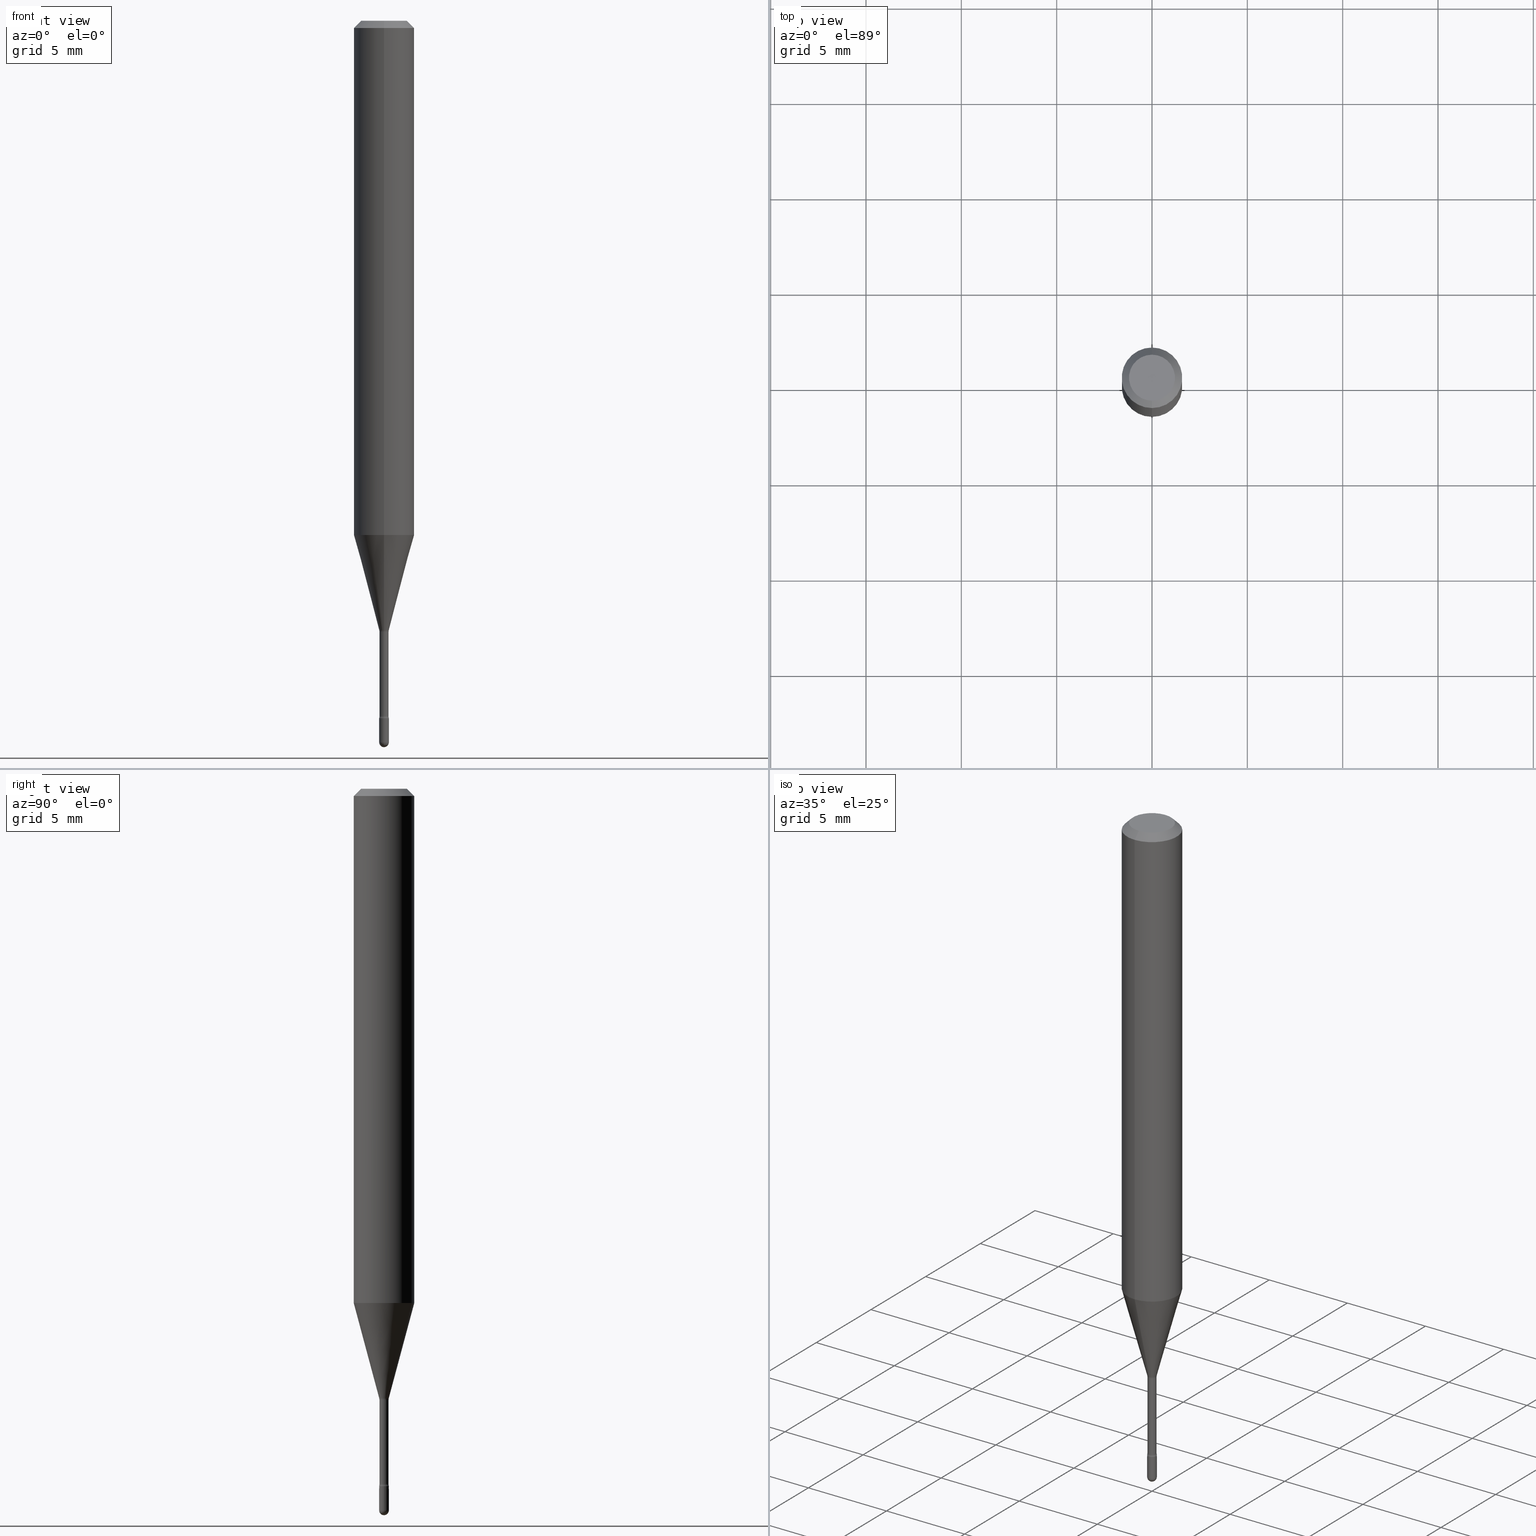
[diagram: canonical four-view strip — front | top / right | iso, engineering-drawing reading convention]
A machine part, canonical four-view strip (front | top / right | iso — engineering-drawing reading convention). The complete STEP part file that produces these views, byte-faithful:
ISO-10303-21;
HEADER;
FILE_DESCRIPTION (( 'STEP AP203' ),
    '1' );
FILE_NAME ('01613.STEP',
    '2024-04-09T20:09:29',
    ( '' ),
    ( '' ),
    'SwSTEP 2.0',
    'SolidWorks 2023',
    '' );
FILE_SCHEMA (( 'CONFIG_CONTROL_DESIGN' ));
ENDSEC;

DATA;
#1 = EDGE_LOOP ( 'NONE', ( #478, #188, #171, #332 ) ) ;
#2 = DIRECTION ( 'NONE',  ( -2.445584668416512625E-29, 3.491315417533346075E-15, 1.000000000000000000 ) ) ;
#3 = DIRECTION ( 'NONE',  ( 1.000000000000000000, -6.982962677686265922E-15, 4.876176775795935793E-29 ) ) ;
#4 = DIRECTION ( 'NONE',  ( 6.982962677686265922E-15, 1.000000000000000000, 0.000000000000000000 ) ) ;
#5 = ADVANCED_FACE ( 'NONE', ( #215 ), #205, .T. ) ;
#6 = AXIS2_PLACEMENT_3D ( 'NONE', #242, #551, #413 ) ;
#7 = CIRCLE ( 'NONE', #529, 0.01000000000000000021 ) ;
#8 = DIRECTION ( 'NONE',  ( 6.982962677686265922E-15, 1.000000000000000000, -3.483106191921935554E-15 ) ) ;
#9 = SECURITY_CLASSIFICATION ( '', '', #507 ) ;
#10 = DIRECTION ( 'NONE',  ( -1.000000000000000000, 6.982962677686265133E-15, -4.883557194083112340E-29 ) ) ;
#11 = CARTESIAN_POINT ( 'NONE',  ( 3.668377002624788976E-31, -5.236973126300048325E-17, -0.01500000000000008271 ) ) ;
#12 = DIRECTION ( 'NONE',  ( -2.445584668416512625E-29, 3.491315417533346075E-15, 1.000000000000000000 ) ) ;
#13 = ADVANCED_FACE ( 'NONE', ( #301 ), #160, .T. ) ;
#14 = CARTESIAN_POINT ( 'NONE',  ( -1.169113584055446105E-44, 1.669184350826100908E-30, 4.780733988912460139E-16 ) ) ;
#15 = DIRECTION ( 'NONE',  ( -6.982962677686265922E-15, -1.000000000000000000, 3.491315417533347653E-15 ) ) ;
#16 = CC_DESIGN_DATE_AND_TIME_ASSIGNMENT ( #203, #22, ( #533 ) ) ;
#17 = CARTESIAN_POINT ( 'NONE',  ( -1.169113584055446105E-44, 1.669184350826100908E-30, 4.780733988912460139E-16 ) ) ;
#18 = CIRCLE ( 'NONE', #554, 0.01500000000000002720 ) ;
#19 = AXIS2_PLACEMENT_3D ( 'NONE', #308, #525, #44 ) ;
#20 = CARTESIAN_POINT ( 'NONE',  ( 1.733724275254997086E-16, 0.02439999999999501248, -1.435799999999999965 ) ) ;
#21 = EDGE_CURVE ( 'NONE', #548, #84, #392, .T. ) ;
#22 = DATE_TIME_ROLE ( 'creation_date' ) ;
#23 = ORIENTED_EDGE ( 'NONE', *, *, #497, .T. ) ;
#24 = AXIS2_PLACEMENT_3D ( 'NONE', #76, #189, #416 ) ;
#25 = APPROVAL_ROLE ( '' ) ;
#26 = CIRCLE ( 'NONE', #360, 0.009399999999999986491 ) ;
#27 = PERSON_AND_ORGANIZATION_ROLE ( 'design_owner' ) ;
#28 = DIRECTION ( 'NONE',  ( -2.445584668416512625E-29, 3.491315417533346075E-15, 1.000000000000000000 ) ) ;
#29 = CARTESIAN_POINT ( 'NONE',  ( 4.440892098500884514E-16, 0.06249999999999629463, -1.061828102118093309 ) ) ;
#30 = ADVANCED_FACE ( 'NONE', ( #487 ), #492, .F. ) ;
#31 = CARTESIAN_POINT ( 'NONE',  ( 3.076771733820729551E-29, -4.392397748173006577E-15, -1.258092501787273276 ) ) ;
#32 = CALENDAR_DATE ( 2024, 9, 4 ) ;
#33 = DIRECTION ( 'NONE',  ( -2.445584668416512625E-29, 3.491315417533346075E-15, 1.000000000000000000 ) ) ;
#34 = EDGE_LOOP ( 'NONE', ( #81, #427, #527, #563 ) ) ;
#35 = APPROVAL_DATE_TIME ( #420, #200 ) ;
#36 = AXIS2_PLACEMENT_3D ( 'NONE', #307, #97, #272 ) ;
#37 = VERTEX_POINT ( 'NONE', #523 ) ;
#38 = AXIS2_PLACEMENT_3D ( 'NONE', #385, #267, #222 ) ;
#39 = CC_DESIGN_APPROVAL ( #480, ( #533 ) ) ;
#40 = CARTESIAN_POINT ( 'NONE',  ( 3.521641922519778920E-29, -5.027494201248018979E-15, -1.440000000000000169 ) ) ;
#41 = ORIENTED_EDGE ( 'NONE', *, *, #98, .F. ) ;
#42 = PRODUCT ( '01613', '01613', '', ( #78 ) ) ;
#43 = ORIENTED_EDGE ( 'NONE', *, *, #82, .F. ) ;
#44 = DIRECTION ( 'NONE',  ( 1.000000000000000000, -6.982962677686265922E-15, 4.876176775795935793E-29 ) ) ;
#45 = VERTEX_POINT ( 'NONE', #474 ) ;
#46 = CIRCLE ( 'NONE', #256, 0.009911112605663983943 ) ;
#47 = ORIENTED_EDGE ( 'NONE', *, *, #111, .T. ) ;
#48 = CIRCLE ( 'NONE', #161, 0.01500000000000002720 ) ;
#49 = CARTESIAN_POINT ( 'NONE',  ( -6.920892941966669973E-17, -0.009911112605668376263, -1.258092501787273276 ) ) ;
#50 = CARTESIAN_POINT ( 'NONE',  ( -6.982962677682758991E-17, -0.01000000000000504825, -1.440000000000000169 ) ) ;
#51 = EDGE_LOOP ( 'NONE', ( #430, #129, #559, #89 ) ) ;
#52 = ORIENTED_EDGE ( 'NONE', *, *, #132, .T. ) ;
#53 = APPLICATION_CONTEXT ( 'configuration controlled 3d designs of mechanical parts and assemblies' ) ;
#54 = EDGE_CURVE ( 'NONE', #349, #45, #87, .T. ) ;
#55 = CARTESIAN_POINT ( 'NONE',  ( -4.287811248607203282E-16, -0.06250000000000005551, -0.01499999999999986587 ) ) ;
#56 = DIRECTION ( 'NONE',  ( -2.445584668416512625E-29, 3.491315417533346075E-15, 1.000000000000000000 ) ) ;
#57 = VERTEX_POINT ( 'NONE', #565 ) ;
#58 = CARTESIAN_POINT ( 'NONE',  ( 3.316907271900976096E-16, 0.04749999999999999362, 3.182176044590865789E-17 ) ) ;
#59 = DIMENSIONAL_EXPONENTS ( 1.000000000000000000, 0.000000000000000000, 0.000000000000000000, 0.000000000000000000, 0.000000000000000000, 0.000000000000000000, 0.000000000000000000 ) ;
#60 = CIRCLE ( 'NONE', #309, 0.01000000000000000021 ) ;
#61 = CARTESIAN_POINT ( 'NONE',  ( -6.563984917021568552E-17, -0.009400000000004998107, -1.435799999999999965 ) ) ;
#62 = EDGE_CURVE ( 'NONE', #228, #468, #328, .T. ) ;
#63 = DIRECTION ( 'NONE',  ( -2.445584668416512625E-29, 3.491315417533346075E-15, 1.000000000000000000 ) ) ;
#64 = ORIENTED_EDGE ( 'NONE', *, *, #543, .F. ) ;
#65 = CARTESIAN_POINT ( 'NONE',  ( -6.563984917025085146E-17, -0.009399999999999993430, 5.108917638160594911E-16 ) ) ;
#66 = DIRECTION ( 'NONE',  ( -6.982962677686265922E-15, -1.000000000000000000, 0.000000000000000000 ) ) ;
#67 = DIRECTION ( 'NONE',  ( -6.982962677686264344E-15, -1.000000000000000000, 0.000000000000000000 ) ) ;
#68 = DIRECTION ( 'NONE',  ( -2.445584668416512625E-29, 3.491315417533346075E-15, 1.000000000000000000 ) ) ;
#69 = VECTOR ( 'NONE', #539, 39.37007874015748143 ) ;
#70 = LINE ( 'NONE', #541, #69 ) ;
#71 = CC_DESIGN_DATE_AND_TIME_ASSIGNMENT ( #337, #119, ( #9 ) ) ;
#72 = PERSON_AND_ORGANIZATION ( #312, #501 ) ;
#73 = DIRECTION ( 'NONE',  ( -6.982962677686265922E-15, -1.000000000000000000, 3.491315417533345680E-15 ) ) ;
#74 = VECTOR ( 'NONE', #262, 39.37007874015748143 ) ;
#75 = EDGE_CURVE ( 'NONE', #378, #314, #235, .T. ) ;
#76 = CARTESIAN_POINT ( 'NONE',  ( 3.076771733820729551E-29, -4.392397748173006577E-15, -1.258092501787273276 ) ) ;
#77 = COORDINATED_UNIVERSAL_TIME_OFFSET ( 5, 0, .BEHIND. ) ;
#78 = MECHANICAL_CONTEXT ( 'NONE', #107, 'mechanical' ) ;
#79 = ORIENTED_EDGE ( 'NONE', *, *, #543, .T. ) ;
#80 = COORDINATED_UNIVERSAL_TIME_OFFSET ( 5, 0, .BEHIND. ) ;
#81 = ORIENTED_EDGE ( 'NONE', *, *, #232, .T. ) ;
#82 = EDGE_CURVE ( 'NONE', #548, #37, #18, .T. ) ;
#83 = FACE_OUTER_BOUND ( 'NONE', #271, .T. ) ;
#84 = VERTEX_POINT ( 'NONE', #202 ) ;
#85 = AXIS2_PLACEMENT_3D ( 'NONE', #266, #63, #231 ) ;
#86 = VERTEX_POINT ( 'NONE', #508 ) ;
#87 = LINE ( 'NONE', #217, #481 ) ;
#88 = EDGE_LOOP ( 'NONE', ( #489, #175, #294, #274, #165 ) ) ;
#89 = ORIENTED_EDGE ( 'NONE', *, *, #62, .F. ) ;
#90 = DIRECTION ( 'NONE',  ( 1.000000000000000000, -6.982962677686235945E-15, 0.000000000000000000 ) ) ;
#91 = VECTOR ( 'NONE', #159, 39.37007874015748143 ) ;
#92 = ADVANCED_FACE ( 'NONE', ( #504 ), #401, .T. ) ;
#93 = APPROVAL_PERSON_ORGANIZATION ( #509, #200, #512 ) ;
#94 = DIRECTION ( 'NONE',  ( -6.982962677686265922E-15, -1.000000000000000000, 3.491315417533345680E-15 ) ) ;
#95 = CARTESIAN_POINT ( 'NONE',  ( 6.982962677689890787E-17, 0.009999999999994771752, -1.490000000000000213 ) ) ;
#96 = EDGE_LOOP ( 'NONE', ( #23, #317 ) ) ;
#97 = DIRECTION ( 'NONE',  ( -2.445584668416512625E-29, 3.491315417533346075E-15, 1.000000000000000000 ) ) ;
#98 = EDGE_CURVE ( 'NONE', #139, #548, #544, .T. ) ;
#99 = DIRECTION ( 'NONE',  ( -6.982962677686265922E-15, -1.000000000000000000, 0.000000000000000000 ) ) ;
#100 = CLOSED_SHELL ( 'NONE', ( #5, #484, #279, #344, #207 ) ) ;
#101 = CIRCLE ( 'NONE', #493, 0.01500000000000003240 ) ;
#102 = CARTESIAN_POINT ( 'NONE',  ( 1.733724275254952959E-16, 0.02439999999999559535, -1.261974787463811198 ) ) ;
#103 = FACE_OUTER_BOUND ( 'NONE', #515, .T. ) ;
#104 = FACE_OUTER_BOUND ( 'NONE', #174, .T. ) ;
#105 = CARTESIAN_POINT ( 'NONE',  ( 3.668630792422295430E-29, -5.236609684865145574E-15, -1.500000000000000222 ) ) ;
#106 = CARTESIAN_POINT ( 'NONE',  ( 6.892264536876497230E-17, 0.009399999999994974875, -1.435799999999999965 ) ) ;
#107 = APPLICATION_CONTEXT ( 'configuration controlled 3d designs of mechanical parts and assemblies' ) ;
#108 = EDGE_CURVE ( 'NONE', #418, #310, #243, .T. ) ;
#109 = CIRCLE ( 'NONE', #198, 0.01000000000000000021 ) ;
#110 = CARTESIAN_POINT ( 'NONE',  ( 0.000000000000000000, 0.000000000000000000, 0.000000000000000000 ) ) ;
#111 = EDGE_CURVE ( 'NONE', #421, #57, #373, .T. ) ;
#112 = COORDINATED_UNIVERSAL_TIME_OFFSET ( 5, 0, .BEHIND. ) ;
#113 = EDGE_LOOP ( 'NONE', ( #213, #348, #130, #386 ) ) ;
#114 = DIRECTION ( 'NONE',  ( -2.445584668416512625E-29, 3.491315417533346075E-15, 1.000000000000000000 ) ) ;
#115 = AXIS2_PLACEMENT_3D ( 'NONE', #404, #234, #361 ) ;
#116 = CARTESIAN_POINT ( 'NONE',  ( 3.086266192149684335E-29, -4.405952032010772688E-15, -1.261974787463811198 ) ) ;
#117 = ORIENTED_EDGE ( 'NONE', *, *, #396, .T. ) ;
#118 = DIRECTION ( 'NONE',  ( -2.445584668416512625E-29, 3.491315417533346075E-15, 1.000000000000000000 ) ) ;
#119 = DATE_TIME_ROLE ( 'classification_date' ) ;
#120 = CARTESIAN_POINT ( 'NONE',  ( -6.920892941966669973E-17, -0.009911112605668376263, -1.258092501787273276 ) ) ;
#121 = ORIENTED_EDGE ( 'NONE', *, *, #438, .F. ) ;
#122 = ADVANCED_FACE ( 'NONE', ( #104 ), #134, .T. ) ;
#123 = LINE ( 'NONE', #375, #452 ) ;
#124 = ORIENTED_EDGE ( 'NONE', *, *, #552, .F. ) ;
#125 = CARTESIAN_POINT ( 'NONE',  ( 2.024395379359398179E-45, -2.888441822342708038E-31, -8.275491333376081363E-17 ) ) ;
#126 = ORIENTED_EDGE ( 'NONE', *, *, #108, .F. ) ;
#127 = VECTOR ( 'NONE', #273, 39.37007874015748143 ) ;
#128 = MANIFOLD_SOLID_BREP ( 'Body-Move/Copy2[1]', #100 ) ;
#129 = ORIENTED_EDGE ( 'NONE', *, *, #75, .T. ) ;
#130 = ORIENTED_EDGE ( 'NONE', *, *, #252, .T. ) ;
#131 = CARTESIAN_POINT ( 'NONE',  ( 3.643748521215853910E-29, -5.202307194876288105E-15, -1.490000000000000213 ) ) ;
#132 = EDGE_CURVE ( 'NONE', #84, #310, #140, .T. ) ;
#133 = ORIENTED_EDGE ( 'NONE', *, *, #62, .T. ) ;
#134 = CONICAL_SURFACE ( 'NONE', #381, 0.009911112605663983943, 0.2617993877991496854 ) ;
#135 = AXIS2_PLACEMENT_3D ( 'NONE', #295, #196, #334 ) ;
#136 = APPROVAL_PERSON_ORGANIZATION ( #503, #225, #25 ) ;
#137 = DIRECTION ( 'NONE',  ( -2.445468806185136597E-29, 3.491481338843145583E-15, 1.000000000000000000 ) ) ;
#138 = ADVANCED_FACE ( 'NONE', ( #152 ), #455, .T. ) ;
#139 = VERTEX_POINT ( 'NONE', #333 ) ;
#140 = LINE ( 'NONE', #338, #91 ) ;
#141 = CARTESIAN_POINT ( 'NONE',  ( 3.521475080906597305E-29, -5.027733127934130649E-15, -1.440000000000000169 ) ) ;
#142 = AXIS2_PLACEMENT_3D ( 'NONE', #17, #403, #73 ) ;
#143 = AXIS2_PLACEMENT_3D ( 'NONE', #31, #542, #201 ) ;
#144 = LOCAL_TIME ( 16, 9, 29.00000000000000000, #286 ) ;
#145 = LINE ( 'NONE', #316, #182 ) ;
#146 = VERTEX_POINT ( 'NONE', #29 ) ;
#147 = VECTOR ( 'NONE', #315, 39.37007874015748854 ) ;
#148 = AXIS2_PLACEMENT_3D ( 'NONE', #536, #356, #318 ) ;
#149 = LOCAL_TIME ( 16, 9, 29.00000000000000000, #341 ) ;
#150 = DIRECTION ( 'NONE',  ( -6.982962677686265922E-15, -1.000000000000000000, 0.000000000000000000 ) ) ;
#151 = ORIENTED_EDGE ( 'NONE', *, *, #477, .F. ) ;
#152 = FACE_OUTER_BOUND ( 'NONE', #335, .T. ) ;
#153 = ADVANCED_FACE ( 'NONE', ( #371 ), #451, .T. ) ;
#154 = PERSON_AND_ORGANIZATION ( #312, #501 ) ;
#155 = DIRECTION ( 'NONE',  ( 1.000000000000000000, 0.000000000000000000, 0.000000000000000000 ) ) ;
#156 = DIRECTION ( 'NONE',  ( -6.982962677686265922E-15, -1.000000000000000000, 0.000000000000000000 ) ) ;
#157 = PERSON_AND_ORGANIZATION_ROLE ( 'design_supplier' ) ;
#158 = APPLICATION_PROTOCOL_DEFINITION ( 'international standard', 'config_control_design', 1994, #107 ) ;
#159 = DIRECTION ( 'NONE',  ( -2.445584668416512625E-29, 3.491315417533346075E-15, 1.000000000000000000 ) ) ;
#160 = CONICAL_SURFACE ( 'NONE', #339, 0.06250000000000000000, 0.7853981633974483900 ) ;
#161 = AXIS2_PLACEMENT_3D ( 'NONE', #102, #546, #277 ) ;
#162 = APPROVAL_STATUS ( 'not_yet_approved' ) ;
#163 = ORIENTED_EDGE ( 'NONE', *, *, #453, .F. ) ;
#164 = DIRECTION ( 'NONE',  ( 0.000000000000000000, 0.000000000000000000, 1.000000000000000000 ) ) ;
#165 = ORIENTED_EDGE ( 'NONE', *, *, #180, .F. ) ;
#166 = UNCERTAINTY_MEASURE_WITH_UNIT (LENGTH_MEASURE( 1.000000000000000082E-05 ), #291, 'distance_accuracy_value', 'NONE');
#167 = ORIENTED_EDGE ( 'NONE', *, *, #297, .T. ) ;
#168 = CARTESIAN_POINT ( 'NONE',  ( 0.000000000000000000, 0.000000000000000000, 0.000000000000000000 ) ) ;
#169 = CARTESIAN_POINT ( 'NONE',  ( 6.679101716148456138E-17, 0.009399999999995595906, -1.261974787463811198 ) ) ;
#170 = TOROIDAL_SURFACE ( 'NONE', #38, 0.02440000000000002237, 0.01500000000000003587 ) ;
#171 = ORIENTED_EDGE ( 'NONE', *, *, #406, .T. ) ;
#172 = AXIS2_PLACEMENT_3D ( 'NONE', #214, #476, #530 ) ;
#173 = EDGE_CURVE ( 'NONE', #548, #139, #46, .T. ) ;
#174 = EDGE_LOOP ( 'NONE', ( #443, #517, #521, #124 ) ) ;
#175 = ORIENTED_EDGE ( 'NONE', *, *, #363, .T. ) ;
#176 = PRODUCT_RELATED_PRODUCT_CATEGORY ( 'detail', '', ( #42 ) ) ;
#177 = FACE_OUTER_BOUND ( 'NONE', #304, .T. ) ;
#178 = CYLINDRICAL_SURFACE ( 'NONE', #346, 0.06250000000000000000 ) ;
#179 = FACE_OUTER_BOUND ( 'NONE', #96, .T. ) ;
#180 = EDGE_CURVE ( 'NONE', #86, #45, #395, .T. ) ;
#181 = AXIS2_PLACEMENT_3D ( 'NONE', #496, #292, #248 ) ;
#182 = VECTOR ( 'NONE', #450, 39.37007874015748143 ) ;
#183 = DIRECTION ( 'NONE',  ( 6.982962677686265133E-15, 1.000000000000000000, 0.000000000000000000 ) ) ;
#184 = EDGE_LOOP ( 'NONE', ( #263, #425, #436, #513 ) ) ;
#185 = CC_DESIGN_PERSON_AND_ORGANIZATION_ASSIGNMENT ( #154, #246, ( #258 ) ) ;
#186 = DIRECTION ( 'NONE',  ( -1.000000000000000000, 7.105427357601001070E-15, -4.926315508542082329E-29 ) ) ;
#187 = LINE ( 'NONE', #237, #127 ) ;
#188 = ORIENTED_EDGE ( 'NONE', *, *, #268, .T. ) ;
#189 = DIRECTION ( 'NONE',  ( -2.445584668416512625E-29, 3.491315417533346075E-15, 1.000000000000000000 ) ) ;
#190 = CARTESIAN_POINT ( 'NONE',  ( 3.668377002624788976E-31, -5.236973126300048325E-17, -0.01500000000000008271 ) ) ;
#191 = TOROIDAL_SURFACE ( 'NONE', #510, 0.02440000000000002237, 0.01500000000000003587 ) ;
#192 = EDGE_CURVE ( 'NONE', #139, #345, #48, .T. ) ;
#193 = DIRECTION ( 'NONE',  ( 1.000000000000000000, -7.105427357601001070E-15, 4.926313476592072516E-29 ) ) ;
#194 = ORIENTED_EDGE ( 'NONE', *, *, #419, .F. ) ;
#195 = APPLICATION_PROTOCOL_DEFINITION ( 'international standard', 'config_control_design', 1994, #53 ) ;
#196 = DIRECTION ( 'NONE',  ( -2.445584668416512625E-29, 3.491315417533346075E-15, 1.000000000000000000 ) ) ;
#197 = EDGE_CURVE ( 'NONE', #440, #37, #447, .T. ) ;
#198 = AXIS2_PLACEMENT_3D ( 'NONE', #485, #68, #99 ) ;
#199 = CALENDAR_DATE ( 2024, 9, 4 ) ;
#200 = APPROVAL ( #162, 'UNSPECIFIED' ) ;
#201 = DIRECTION ( 'NONE',  ( -6.982962677686264344E-15, -1.000000000000000000, 0.000000000000000000 ) ) ;
#202 = CARTESIAN_POINT ( 'NONE',  ( -4.364351673553657356E-16, -0.06250000000000371925, -1.061828102118092865 ) ) ;
#203 = DATE_AND_TIME ( #462, #149 ) ;
#204 = CARTESIAN_POINT ( 'NONE',  ( 3.643748521215853910E-29, -5.202307194876288105E-15, -1.490000000000000213 ) ) ;
#205 = CYLINDRICAL_SURFACE ( 'NONE', #410, 0.01000000000000000021 ) ;
#206 = PRODUCT_DEFINITION_SHAPE ( 'NONE', 'NONE',  #533 ) ;
#207 = ADVANCED_FACE ( 'NONE', ( #537 ), #233, .T. ) ;
#208 = CIRCLE ( 'NONE', #423, 0.01000000000000000021 ) ;
#209 = SHAPE_DEFINITION_REPRESENTATION ( #206, #321 ) ;
#210 = DIRECTION ( 'NONE',  ( -2.445584668416512625E-29, 3.491315417533346075E-15, 1.000000000000000000 ) ) ;
#211 = ORIENTED_EDGE ( 'NONE', *, *, #54, .F. ) ;
#212 = PLANE ( 'NONE',  #226 ) ;
#213 = ORIENTED_EDGE ( 'NONE', *, *, #268, .F. ) ;
#214 = CARTESIAN_POINT ( 'NONE',  ( 3.643748521215853910E-29, -5.202307194876288105E-15, -1.490000000000000213 ) ) ;
#215 = FACE_OUTER_BOUND ( 'NONE', #390, .T. ) ;
#216 = ADVANCED_FACE ( 'NONE', ( #531 ), #178, .T. ) ;
#217 = CARTESIAN_POINT ( 'NONE',  ( 0.01000000000000000021, -6.982962677686265724E-17, 4.876176775795935968E-31 ) ) ;
#218 = CIRCLE ( 'NONE', #538, 0.01500000000000003240 ) ;
#219 = EDGE_LOOP ( 'NONE', ( #194, #303, #221, #64 ) ) ;
#220 = LOCAL_TIME ( 16, 9, 29.00000000000000000, #80 ) ;
#221 = ORIENTED_EDGE ( 'NONE', *, *, #431, .T. ) ;
#222 = DIRECTION ( 'NONE',  ( -6.982962677686265922E-15, -1.000000000000000000, 3.491315417533345680E-15 ) ) ;
#223 = CARTESIAN_POINT ( 'NONE',  ( 3.643748521215853910E-29, -5.202307194876288105E-15, -1.490000000000000213 ) ) ;
#224 = CYLINDRICAL_SURFACE ( 'NONE', #405, 0.009399999999999993430 ) ;
#225 = APPROVAL ( #467, 'UNSPECIFIED' ) ;
#226 = AXIS2_PLACEMENT_3D ( 'NONE', #434, #566, #472 ) ;
#227 = DIRECTION ( 'NONE',  ( -2.445584668416512625E-29, 3.491315417533346075E-15, 1.000000000000000000 ) ) ;
#228 = VERTEX_POINT ( 'NONE', #95 ) ;
#229 = DIRECTION ( 'NONE',  ( -1.000000000000000000, 6.982962677686265922E-15, -4.883557194083112340E-29 ) ) ;
#230 = DIRECTION ( 'NONE',  ( -2.445584668416512625E-29, 3.491315417533346075E-15, 1.000000000000000000 ) ) ;
#231 = DIRECTION ( 'NONE',  ( -6.982962677686265922E-15, -1.000000000000000000, 0.000000000000000000 ) ) ;
#232 = EDGE_CURVE ( 'NONE', #440, #473, #470, .T. ) ;
#233 = CYLINDRICAL_SURFACE ( 'NONE', #148, 0.01000000000000000021 ) ;
#234 = DIRECTION ( 'NONE',  ( -2.445468806185136597E-29, 3.491481338843145583E-15, 1.000000000000000000 ) ) ;
#235 = CIRCLE ( 'NONE', #275, 0.009999999999999946432 ) ;
#236 = CC_DESIGN_PERSON_AND_ORGANIZATION_ASSIGNMENT ( #293, #240, ( #533 ) ) ;
#237 = CARTESIAN_POINT ( 'NONE',  ( 7.042269065257977501E-17, 0.009911112605659591623, -1.258092501787273276 ) ) ;
#238 = ADVANCED_FACE ( 'NONE', ( #483 ), #391, .F. ) ;
#239 = CARTESIAN_POINT ( 'NONE',  ( -1.703842893355099302E-16, -0.02440000000000503225, -1.435799999999999965 ) ) ;
#240 = PERSON_AND_ORGANIZATION_ROLE ( 'creator' ) ;
#241 = LENGTH_MEASURE_WITH_UNIT ( LENGTH_MEASURE( 0.02539999999999999897 ), #247 );
#242 = CARTESIAN_POINT ( 'NONE',  ( 3.668377002624788976E-31, -5.236973126300048325E-17, -0.01500000000000008271 ) ) ;
#243 = CIRCLE ( 'NONE', #469, 0.06250000000000000000 ) ;
#244 = AXIS2_PLACEMENT_3D ( 'NONE', #125, #2, #558 ) ;
#245 = CC_DESIGN_APPROVAL ( #225, ( #258 ) ) ;
#246 = PERSON_AND_ORGANIZATION_ROLE ( 'creator' ) ;
#247 =( LENGTH_UNIT ( ) NAMED_UNIT ( * ) SI_UNIT ( $, .METRE. ) );
#248 = DIRECTION ( 'NONE',  ( -6.982962677686266711E-15, -1.000000000000000000, 3.491315417533346075E-15 ) ) ;
#249 = DATE_AND_TIME ( #199, #444 ) ;
#250 = PERSON_AND_ORGANIZATION ( #312, #501 ) ;
#251 = ORIENTED_EDGE ( 'NONE', *, *, #438, .T. ) ;
#252 = EDGE_CURVE ( 'NONE', #421, #418, #475, .T. ) ;
#253 = CALENDAR_DATE ( 2024, 9, 4 ) ;
#254 =( NAMED_UNIT ( * ) PLANE_ANGLE_UNIT ( ) SI_UNIT ( $, .RADIAN. ) );
#255 = ORIENTED_EDGE ( 'NONE', *, *, #326, .T. ) ;
#256 = AXIS2_PLACEMENT_3D ( 'NONE', #398, #227, #67 ) ;
#257 = CIRCLE ( 'NONE', #340, 0.06250000000000000000 ) ;
#258 = PRODUCT_DEFINITION_FORMATION_WITH_SPECIFIED_SOURCE ( 'ANY', '', #42, .NOT_KNOWN. ) ;
#259 = ORIENTED_EDGE ( 'NONE', *, *, #197, .T. ) ;
#260 = EDGE_CURVE ( 'NONE', #345, #37, #282, .T. ) ;
#261 = ORIENTED_EDGE ( 'NONE', *, *, #411, .T. ) ;
#262 = DIRECTION ( 'NONE',  ( -4.851104656540964275E-15, -0.7071067811865500152, -0.7071067811865450192 ) ) ;
#263 = ORIENTED_EDGE ( 'NONE', *, *, #453, .T. ) ;
#264 = EDGE_LOOP ( 'NONE', ( #397, #459, #296, #327 ) ) ;
#265 = CIRCLE ( 'NONE', #115, 0.01000000000000000021 ) ;
#266 = CARTESIAN_POINT ( 'NONE',  ( 3.511370466912429187E-29, -5.012830676494379173E-15, -1.435799999999999965 ) ) ;
#267 = DIRECTION ( 'NONE',  ( -2.445584668416512625E-29, 3.491315417533346075E-15, 1.000000000000000000 ) ) ;
#268 = EDGE_CURVE ( 'NONE', #57, #310, #516, .T. ) ;
#269 = DIRECTION ( 'NONE',  ( 6.982962677686265922E-15, 1.000000000000000000, -3.491315417533346075E-15 ) ) ;
#270 = DIRECTION ( 'NONE',  ( -2.445584668416512625E-29, 3.491315417533346075E-15, 1.000000000000000000 ) ) ;
#271 = EDGE_LOOP ( 'NONE', ( #377, #167, #121, #557 ) ) ;
#272 = DIRECTION ( 'NONE',  ( -6.982962677686265922E-15, -1.000000000000000000, 3.491315417533345680E-15 ) ) ;
#273 = DIRECTION ( 'NONE',  ( 1.839019923739596371E-15, 0.2588190451025244032, 0.9659258262890673130 ) ) ;
#274 = ORIENTED_EDGE ( 'NONE', *, *, #54, .T. ) ;
#275 = AXIS2_PLACEMENT_3D ( 'NONE', #388, #186, #357 ) ;
#276 = AXIS2_PLACEMENT_3D ( 'NONE', #368, #549, #156 ) ;
#277 = DIRECTION ( 'NONE',  ( 7.105427357601000281E-15, 1.000000000000000000, 0.000000000000000000 ) ) ;
#278 = DIRECTION ( 'NONE',  ( 1.000000000000000000, -6.982962677686235945E-15, 0.000000000000000000 ) ) ;
#279 = ADVANCED_FACE ( 'NONE', ( #179 ), #428, .T. ) ;
#280 = CARTESIAN_POINT ( 'NONE',  ( 3.076771733820729551E-29, -4.392397748173006577E-15, -1.258092501787273276 ) ) ;
#281 = DIRECTION ( 'NONE',  ( -6.982962677686265922E-15, -1.000000000000000000, 3.483106191921935554E-15 ) ) ;
#282 = CIRCLE ( 'NONE', #276, 0.009400000000000002104 ) ;
#283 = CC_DESIGN_APPROVAL ( #200, ( #9 ) ) ;
#284 = ADVANCED_FACE ( 'NONE', ( #305 ), #212, .F. ) ;
#285 = DIRECTION ( 'NONE',  ( -6.982962677686264344E-15, -1.000000000000000000, 0.000000000000000000 ) ) ;
#286 = COORDINATED_UNIVERSAL_TIME_OFFSET ( 5, 0, .BEHIND. ) ;
#287 = ORIENTED_EDGE ( 'NONE', *, *, #552, .T. ) ;
#288 = DIRECTION ( 'NONE',  ( -6.982962677686265922E-15, -1.000000000000000000, 3.491315417533347653E-15 ) ) ;
#289 = CIRCLE ( 'NONE', #135, 0.06250000000000000000 ) ;
#290 = APPROVAL_DATE_TIME ( #409, #480 ) ;
#291 =( CONVERSION_BASED_UNIT ( 'INCH', #241 ) LENGTH_UNIT ( ) NAMED_UNIT ( #59 ) );
#292 = DIRECTION ( 'NONE',  ( -2.445584668416512625E-29, 3.491315417533346075E-15, 1.000000000000000000 ) ) ;
#293 = PERSON_AND_ORGANIZATION ( #312, #501 ) ;
#294 = ORIENTED_EDGE ( 'NONE', *, *, #561, .T. ) ;
#295 = CARTESIAN_POINT ( 'NONE',  ( 2.596790527033811359E-29, -3.707176823695070434E-15, -1.061828102118093087 ) ) ;
#296 = ORIENTED_EDGE ( 'NONE', *, *, #82, .T. ) ;
#297 = EDGE_CURVE ( 'NONE', #378, #228, #545, .T. ) ;
#298 = AXIS2_PLACEMENT_3D ( 'NONE', #482, #437, #4 ) ;
#299 = FACE_OUTER_BOUND ( 'NONE', #219, .T. ) ;
#300 = VERTEX_POINT ( 'NONE', #50 ) ;
#301 = FACE_OUTER_BOUND ( 'NONE', #1, .T. ) ;
#302 = CARTESIAN_POINT ( 'NONE',  ( -7.105427357597337501E-17, -0.01000000000000517836, -1.490000000000000213 ) ) ;
#303 = ORIENTED_EDGE ( 'NONE', *, *, #477, .T. ) ;
#304 = EDGE_LOOP ( 'NONE', ( #151, #380, #79, #372 ) ) ;
#305 = FACE_OUTER_BOUND ( 'NONE', #465, .T. ) ;
#306 = ORIENTED_EDGE ( 'NONE', *, *, #367, .F. ) ;
#307 = CARTESIAN_POINT ( 'NONE',  ( 3.086119976934868225E-29, -4.406161420520441844E-15, -1.261974787463811198 ) ) ;
#308 = CARTESIAN_POINT ( 'NONE',  ( 3.521475080906597305E-29, -5.027733127934130649E-15, -1.440000000000000169 ) ) ;
#309 = AXIS2_PLACEMENT_3D ( 'NONE', #40, #56, #488 ) ;
#310 = VERTEX_POINT ( 'NONE', #353 ) ;
#311 = CC_DESIGN_PERSON_AND_ORGANIZATION_ASSIGNMENT ( #250, #27, ( #42 ) ) ;
#312 = PERSON ( 'UNSPECIFIED', 'UNSPECIFIED', 'UNSPECIFIED', ('UNSPECIFIED'), ('UNSPECIFIED'), ('UNSPECIFIED') ) ;
#313 = CARTESIAN_POINT ( 'NONE',  ( 4.440892098500887472E-16, 0.06249999999999995837, -0.01500000000000030129 ) ) ;
#314 = VERTEX_POINT ( 'NONE', #302 ) ;
#315 = DIRECTION ( 'NONE',  ( -1.807323732225326195E-15, -0.2588190451025176309, 0.9659258262890690894 ) ) ;
#316 = CARTESIAN_POINT ( 'NONE',  ( -0.01000000000000000021, 7.105427357601002007E-17, -4.918935090254906272E-31 ) ) ;
#317 = ORIENTED_EDGE ( 'NONE', *, *, #180, .T. ) ;
#318 = DIRECTION ( 'NONE',  ( 1.000000000000000000, -6.982962677686265922E-15, 4.876176775795935793E-29 ) ) ;
#319 = DIRECTION ( 'NONE',  ( -2.445468806185136597E-29, 3.491481338843145583E-15, 1.000000000000000000 ) ) ;
#320 = DIRECTION ( 'NONE',  ( -2.445468806185136597E-29, 3.491481338843145583E-15, 1.000000000000000000 ) ) ;
#321 = ADVANCED_BREP_SHAPE_REPRESENTATION ( '01613', ( #128, #505, #330 ), #471 ) ;
#322 = AXIS2_PLACEMENT_3D ( 'NONE', #58, #524, #269 ) ;
#323 = CC_DESIGN_PERSON_AND_ORGANIZATION_ASSIGNMENT ( #369, #157, ( #258 ) ) ;
#324 = DIRECTION ( 'NONE',  ( -6.982962677686265922E-15, -1.000000000000000000, 3.491315417533345680E-15 ) ) ;
#325 = VERTEX_POINT ( 'NONE', #520 ) ;
#326 = EDGE_CURVE ( 'NONE', #57, #421, #500, .T. ) ;
#327 = ORIENTED_EDGE ( 'NONE', *, *, #514, .T. ) ;
#328 = CIRCLE ( 'NONE', #499, 0.01000000000000000021 ) ;
#329 = CONICAL_SURFACE ( 'NONE', #143, 0.009911112605663983943, 0.2617993877991496854 ) ;
#330 = AXIS2_PLACEMENT_3D ( 'NONE', #110, #164, #155 ) ;
#331 =( NAMED_UNIT ( * ) SI_UNIT ( $, .STERADIAN. ) SOLID_ANGLE_UNIT ( ) );
#332 = ORIENTED_EDGE ( 'NONE', *, *, #252, .F. ) ;
#333 = CARTESIAN_POINT ( 'NONE',  ( 2.572559502513342919E-16, 0.009911112605659591623, -1.258092501787273276 ) ) ;
#334 = DIRECTION ( 'NONE',  ( -6.982962677686265922E-15, -1.000000000000000000, 4.370956789862821150E-15 ) ) ;
#335 = EDGE_LOOP ( 'NONE', ( #343, #287, #52, #126 ) ) ;
#336 = ADVANCED_FACE ( 'NONE', ( #299 ), #170, .F. ) ;
#337 = DATE_AND_TIME ( #457, #461 ) ;
#338 = CARTESIAN_POINT ( 'NONE',  ( -4.364351673553916201E-16, -0.06250000000000000000, 6.962806124870801683E-16 ) ) ;
#339 = AXIS2_PLACEMENT_3D ( 'NONE', #433, #352, #8 ) ;
#340 = AXIS2_PLACEMENT_3D ( 'NONE', #407, #540, #399 ) ;
#341 = COORDINATED_UNIVERSAL_TIME_OFFSET ( 5, 0, .BEHIND. ) ;
#342 = ORIENTED_EDGE ( 'NONE', *, *, #260, .F. ) ;
#343 = ORIENTED_EDGE ( 'NONE', *, *, #519, .F. ) ;
#344 = ADVANCED_FACE ( 'NONE', ( #83 ), #426, .T. ) ;
#345 = VERTEX_POINT ( 'NONE', #169 ) ;
#346 = AXIS2_PLACEMENT_3D ( 'NONE', #445, #351, #94 ) ;
#347 = DIRECTION ( 'NONE',  ( -6.982962677686265922E-15, -1.000000000000000000, 3.491315417533345680E-15 ) ) ;
#348 = ORIENTED_EDGE ( 'NONE', *, *, #111, .F. ) ;
#349 = VERTEX_POINT ( 'NONE', #389 ) ;
#350 = ADVANCED_FACE ( 'NONE', ( #177 ), #191, .F. ) ;
#351 = DIRECTION ( 'NONE',  ( -2.445584668416512625E-29, 3.491315417533346075E-15, 1.000000000000000000 ) ) ;
#352 = DIRECTION ( 'NONE',  ( 2.445584668416512625E-29, -3.491315417533346075E-15, -1.000000000000000000 ) ) ;
#353 = CARTESIAN_POINT ( 'NONE',  ( -4.364351673553912750E-16, -0.06250000000000005551, -0.01499999999999986587 ) ) ;
#354 = AXIS2_PLACEMENT_3D ( 'NONE', #223, #137, #424 ) ;
#355 = CARTESIAN_POINT ( 'NONE',  ( 3.840629472727447874E-16, 0.04749999999999999362, -2.485923956665947374E-16 ) ) ;
#356 = DIRECTION ( 'NONE',  ( -2.445468806185136597E-29, 3.491481338843145583E-15, 1.000000000000000000 ) ) ;
#357 = DIRECTION ( 'NONE',  ( -7.105427357601000281E-15, -1.000000000000000000, 0.000000000000000000 ) ) ;
#358 = CARTESIAN_POINT ( 'NONE',  ( -0.01000000000000000021, -5.043965887829198901E-15, -1.490000000000000213 ) ) ;
#359 = DIRECTION ( 'NONE',  ( -2.445584668416512625E-29, 3.491315417533346075E-15, 1.000000000000000000 ) ) ;
#360 = AXIS2_PLACEMENT_3D ( 'NONE', #448, #270, #66 ) ;
#361 = DIRECTION ( 'NONE',  ( 1.000000000000000000, -6.982962677686235945E-15, 0.000000000000000000 ) ) ;
#362 = FACE_OUTER_BOUND ( 'NONE', #51, .T. ) ;
#363 = EDGE_CURVE ( 'NONE', #468, #314, #442, .T. ) ;
#364 = PERSON_AND_ORGANIZATION_ROLE ( 'classification_officer' ) ;
#365 = AXIS2_PLACEMENT_3D ( 'NONE', #511, #319, #491 ) ;
#366 = CARTESIAN_POINT ( 'NONE',  ( -1.703842893355140225E-16, -0.02440000000000440775, -1.261974787463811198 ) ) ;
#367 = EDGE_CURVE ( 'NONE', #300, #325, #60, .T. ) ;
#368 = CARTESIAN_POINT ( 'NONE',  ( 3.086266192149684335E-29, -4.405952032010772688E-15, -1.261974787463811198 ) ) ;
#369 = PERSON_AND_ORGANIZATION ( #312, #501 ) ;
#370 = DIRECTION ( 'NONE',  ( -6.982962677686269866E-15, -1.000000000000000000, 0.000000000000000000 ) ) ;
#371 = FACE_OUTER_BOUND ( 'NONE', #113, .T. ) ;
#372 = ORIENTED_EDGE ( 'NONE', *, *, #367, .T. ) ;
#373 = CIRCLE ( 'NONE', #181, 0.04749999999999999362 ) ;
#374 = AXIS2_PLACEMENT_3D ( 'NONE', #190, #441, #281 ) ;
#375 = CARTESIAN_POINT ( 'NONE',  ( 4.440892098500625669E-16, 0.06250000000000000000, 2.598661852954119582E-16 ) ) ;
#376 = EDGE_CURVE ( 'NONE', #473, #345, #70, .T. ) ;
#377 = ORIENTED_EDGE ( 'NONE', *, *, #75, .F. ) ;
#378 = VERTEX_POINT ( 'NONE', #105 ) ;
#379 = CARTESIAN_POINT ( 'NONE',  ( 3.511204111920619566E-29, -5.013068906310988441E-15, -1.435799999999999965 ) ) ;
#380 = ORIENTED_EDGE ( 'NONE', *, *, #232, .F. ) ;
#381 = AXIS2_PLACEMENT_3D ( 'NONE', #280, #28, #285 ) ;
#382 = CIRCLE ( 'NONE', #374, 0.06250000000000000000 ) ;
#383 = DIRECTION ( 'NONE',  ( -2.445468806185136877E-29, 3.491481338843145188E-15, 1.000000000000000000 ) ) ;
#384 = APPROVAL_PERSON_ORGANIZATION ( #72, #480, #415 ) ;
#385 = CARTESIAN_POINT ( 'NONE',  ( 3.511204111920619566E-29, -5.013068906310988441E-15, -1.435799999999999965 ) ) ;
#386 = ORIENTED_EDGE ( 'NONE', *, *, #108, .T. ) ;
#387 = ORIENTED_EDGE ( 'NONE', *, *, #376, .F. ) ;
#388 = CARTESIAN_POINT ( 'NONE',  ( 3.643748521215853910E-29, -5.202307194876288105E-15, -1.490000000000000213 ) ) ;
#389 = CARTESIAN_POINT ( 'NONE',  ( 0.01000000000000000021, -5.184849788182071492E-15, -1.490000000000000213 ) ) ;
#390 = EDGE_LOOP ( 'NONE', ( #133, #261, #490, #211, #251 ) ) ;
#391 = PLANE ( 'NONE',  #322 ) ;
#392 = LINE ( 'NONE', #49, #147 ) ;
#393 = CLOSED_SHELL ( 'NONE', ( #449, #92, #336, #13, #216, #502, #122, #138, #153, #238, #284, #350, #466, #30 ) ) ;
#394 = CARTESIAN_POINT ( 'NONE',  ( -1.169113584055446105E-44, 1.669184350826100908E-30, 4.780733988912460139E-16 ) ) ;
#395 = CIRCLE ( 'NONE', #365, 0.01000000000000000021 ) ;
#396 = EDGE_CURVE ( 'NONE', #139, #146, #187, .T. ) ;
#397 = ORIENTED_EDGE ( 'NONE', *, *, #192, .F. ) ;
#398 = CARTESIAN_POINT ( 'NONE',  ( 3.076771733820729551E-29, -4.392397748173006577E-15, -1.258092501787273276 ) ) ;
#399 = DIRECTION ( 'NONE',  ( -6.982962677686265922E-15, -1.000000000000000000, 4.370956789862821150E-15 ) ) ;
#400 = ORIENTED_EDGE ( 'NONE', *, *, #173, .T. ) ;
#401 = CYLINDRICAL_SURFACE ( 'NONE', #564, 0.009399999999999993430 ) ;
#402 = DIRECTION ( 'NONE',  ( 7.105427357601003436E-15, 1.000000000000000000, 0.000000000000000000 ) ) ;
#403 = DIRECTION ( 'NONE',  ( -2.445584668416512625E-29, 3.491315417533346075E-15, 1.000000000000000000 ) ) ;
#404 = CARTESIAN_POINT ( 'NONE',  ( 3.643748521215853910E-29, -5.202307194876288105E-15, -1.490000000000000213 ) ) ;
#405 = AXIS2_PLACEMENT_3D ( 'NONE', #394, #12, #15 ) ;
#406 = EDGE_CURVE ( 'NONE', #310, #418, #382, .T. ) ;
#407 = CARTESIAN_POINT ( 'NONE',  ( 2.596790527033811359E-29, -3.707176823695070434E-15, -1.061828102118093087 ) ) ;
#408 = DIRECTION ( 'NONE',  ( -1.000000000000000000, 6.982962677686265922E-15, -4.883557194083112340E-29 ) ) ;
#409 = DATE_AND_TIME ( #32, #144 ) ;
#410 = AXIS2_PLACEMENT_3D ( 'NONE', #168, #528, #3 ) ;
#411 = EDGE_CURVE ( 'NONE', #468, #86, #145, .T. ) ;
#412 = AXIS2_PLACEMENT_3D ( 'NONE', #535, #10, #183 ) ;
#413 = DIRECTION ( 'NONE',  ( 6.982962677686265922E-15, 1.000000000000000000, -3.483106191921935554E-15 ) ) ;
#414 = VECTOR ( 'NONE', #359, 39.37007874015748143 ) ;
#415 = APPROVAL_ROLE ( '' ) ;
#416 = DIRECTION ( 'NONE',  ( -6.982962677686264344E-15, -1.000000000000000000, 0.000000000000000000 ) ) ;
#417 = PERSON_AND_ORGANIZATION ( #312, #501 ) ;
#418 = VERTEX_POINT ( 'NONE', #313 ) ;
#419 = EDGE_CURVE ( 'NONE', #473, #440, #26, .T. ) ;
#420 = DATE_AND_TIME ( #253, #220 ) ;
#421 = VERTEX_POINT ( 'NONE', #355 ) ;
#422 = TOROIDAL_SURFACE ( 'NONE', #518, 0.02440000000000000155, 0.01500000000000002373 ) ;
#423 = AXIS2_PLACEMENT_3D ( 'NONE', #204, #553, #547 ) ;
#424 = DIRECTION ( 'NONE',  ( 1.000000000000000000, -6.982962677686235945E-15, 0.000000000000000000 ) ) ;
#425 = ORIENTED_EDGE ( 'NONE', *, *, #519, .T. ) ;
#426 = SPHERICAL_SURFACE ( 'NONE', #172, 0.009999999999999946432 ) ;
#427 = ORIENTED_EDGE ( 'NONE', *, *, #376, .T. ) ;
#428 = PLANE ( 'NONE',  #19 ) ;
#429 = ORIENTED_EDGE ( 'NONE', *, *, #260, .T. ) ;
#430 = ORIENTED_EDGE ( 'NONE', *, *, #297, .F. ) ;
#431 = EDGE_CURVE ( 'NONE', #325, #300, #109, .T. ) ;
#432 = AXIS2_PLACEMENT_3D ( 'NONE', #116, #210, #150 ) ;
#433 = CARTESIAN_POINT ( 'NONE',  ( 3.668377002624788976E-31, -5.236973126300048325E-17, -0.01500000000000008271 ) ) ;
#434 = CARTESIAN_POINT ( 'NONE',  ( 6.982962677689787249E-17, 0.009999999999994971245, -1.440000000000000169 ) ) ;
#435 = EDGE_LOOP ( 'NONE', ( #47, #255 ) ) ;
#436 = ORIENTED_EDGE ( 'NONE', *, *, #406, .F. ) ;
#437 = DIRECTION ( 'NONE',  ( 1.000000000000000000, -6.982962677686265922E-15, 4.883557194083112340E-29 ) ) ;
#438 = EDGE_CURVE ( 'NONE', #349, #228, #265, .T. ) ;
#439 = SPHERICAL_SURFACE ( 'NONE', #412, 0.009999999999999946432 ) ;
#440 = VERTEX_POINT ( 'NONE', #61 ) ;
#441 = DIRECTION ( 'NONE',  ( -2.445584668416512625E-29, 3.491315417533346075E-15, 1.000000000000000000 ) ) ;
#442 = CIRCLE ( 'NONE', #354, 0.01000000000000000021 ) ;
#443 = ORIENTED_EDGE ( 'NONE', *, *, #396, .F. ) ;
#444 = LOCAL_TIME ( 16, 9, 29.00000000000000000, #77 ) ;
#445 = CARTESIAN_POINT ( 'NONE',  ( -1.169113584055446105E-44, 1.669184350826100908E-30, 4.780733988912460139E-16 ) ) ;
#446 = FACE_OUTER_BOUND ( 'NONE', #522, .T. ) ;
#447 = LINE ( 'NONE', #65, #414 ) ;
#448 = CARTESIAN_POINT ( 'NONE',  ( 3.511370466912429187E-29, -5.012830676494379173E-15, -1.435799999999999965 ) ) ;
#449 = ADVANCED_FACE ( 'NONE', ( #103 ), #422, .F. ) ;
#450 = DIRECTION ( 'NONE',  ( -2.445468806185136877E-29, 3.491481338843145188E-15, 1.000000000000000000 ) ) ;
#451 = CONICAL_SURFACE ( 'NONE', #6, 0.06250000000000000000, 0.7853981633974483900 ) ;
#452 = VECTOR ( 'NONE', #33, 39.37007874015748143 ) ;
#453 = EDGE_CURVE ( 'NONE', #84, #146, #257, .T. ) ;
#454 = ORIENTED_EDGE ( 'NONE', *, *, #192, .T. ) ;
#455 = CYLINDRICAL_SURFACE ( 'NONE', #142, 0.06250000000000000000 ) ;
#456 = DIRECTION ( 'NONE',  ( 4.937700262164548042E-15, 0.7071067811865451302, -0.7071067811865499042 ) ) ;
#457 = CALENDAR_DATE ( 2024, 9, 4 ) ;
#458 = CC_DESIGN_PERSON_AND_ORGANIZATION_ASSIGNMENT ( #417, #364, ( #9 ) ) ;
#459 = ORIENTED_EDGE ( 'NONE', *, *, #173, .F. ) ;
#460 = CIRCLE ( 'NONE', #432, 0.009400000000000002104 ) ;
#461 = LOCAL_TIME ( 16, 9, 29.00000000000000000, #112 ) ;
#462 = CALENDAR_DATE ( 2024, 9, 4 ) ;
#463 = DIRECTION ( 'NONE',  ( -6.982962677686265922E-15, -1.000000000000000000, 3.483106191921935554E-15 ) ) ;
#464 = APPROVAL_DATE_TIME ( #249, #225 ) ;
#465 = EDGE_LOOP ( 'NONE', ( #306, #532 ) ) ;
#466 = ADVANCED_FACE ( 'NONE', ( #494 ), #224, .T. ) ;
#467 = APPROVAL_STATUS ( 'not_yet_approved' ) ;
#468 = VERTEX_POINT ( 'NONE', #358 ) ;
#469 = AXIS2_PLACEMENT_3D ( 'NONE', #11, #118, #463 ) ;
#470 = CIRCLE ( 'NONE', #85, 0.009399999999999986491 ) ;
#471 =( GEOMETRIC_REPRESENTATION_CONTEXT ( 3 ) GLOBAL_UNCERTAINTY_ASSIGNED_CONTEXT ( ( #166 ) ) GLOBAL_UNIT_ASSIGNED_CONTEXT ( ( #291, #254, #331 ) ) REPRESENTATION_CONTEXT ( 'NONE', 'WORKASPACE' ) );
#472 = DIRECTION ( 'NONE',  ( -6.982962677686265922E-15, -1.000000000000000000, 3.491315417533346075E-15 ) ) ;
#473 = VERTEX_POINT ( 'NONE', #106 ) ;
#474 = CARTESIAN_POINT ( 'NONE',  ( 0.01000000000000000021, -5.097562754710993158E-15, -1.440000000000000169 ) ) ;
#475 = LINE ( 'NONE', #506, #556 ) ;
#476 = DIRECTION ( 'NONE',  ( -1.000000000000000000, 6.982962677686265133E-15, -4.883557194083112340E-29 ) ) ;
#477 = EDGE_CURVE ( 'NONE', #473, #325, #101, .T. ) ;
#478 = ORIENTED_EDGE ( 'NONE', *, *, #326, .F. ) ;
#479 = DIRECTION ( 'NONE',  ( -2.445468806185136597E-29, 3.491481338843145583E-15, 1.000000000000000000 ) ) ;
#480 = APPROVAL ( #550, 'UNSPECIFIED' ) ;
#481 = VECTOR ( 'NONE', #383, 39.37007874015748143 ) ;
#482 = CARTESIAN_POINT ( 'NONE',  ( 3.643748521215853910E-29, -5.202307194876288105E-15, -1.490000000000000213 ) ) ;
#483 = FACE_OUTER_BOUND ( 'NONE', #435, .T. ) ;
#484 = ADVANCED_FACE ( 'NONE', ( #362 ), #439, .T. ) ;
#485 = CARTESIAN_POINT ( 'NONE',  ( 3.521641922519778920E-29, -5.027494201248018979E-15, -1.440000000000000169 ) ) ;
#486 = ORIENTED_EDGE ( 'NONE', *, *, #21, .F. ) ;
#487 = FACE_OUTER_BOUND ( 'NONE', #264, .T. ) ;
#488 = DIRECTION ( 'NONE',  ( -6.982962677686265922E-15, -1.000000000000000000, 0.000000000000000000 ) ) ;
#489 = ORIENTED_EDGE ( 'NONE', *, *, #411, .F. ) ;
#490 = ORIENTED_EDGE ( 'NONE', *, *, #497, .F. ) ;
#491 = DIRECTION ( 'NONE',  ( 1.000000000000000000, -6.982962677686235945E-15, 0.000000000000000000 ) ) ;
#492 = TOROIDAL_SURFACE ( 'NONE', #36, 0.02440000000000000155, 0.01500000000000002373 ) ;
#493 = AXIS2_PLACEMENT_3D ( 'NONE', #20, #193, #402 ) ;
#494 = FACE_OUTER_BOUND ( 'NONE', #555, .T. ) ;
#495 = CC_DESIGN_SECURITY_CLASSIFICATION ( #9, ( #258 ) ) ;
#496 = CARTESIAN_POINT ( 'NONE',  ( 2.024395379359398179E-45, -2.888441822342708038E-31, -8.275491333376081363E-17 ) ) ;
#497 = EDGE_CURVE ( 'NONE', #45, #86, #7, .T. ) ;
#498 = CARTESIAN_POINT ( 'NONE',  ( 3.086119976934868225E-29, -4.406161420520441844E-15, -1.261974787463811198 ) ) ;
#499 = AXIS2_PLACEMENT_3D ( 'NONE', #131, #479, #90 ) ;
#500 = CIRCLE ( 'NONE', #244, 0.04749999999999999362 ) ;
#501 = ORGANIZATION ( 'UNSPECIFIED', 'UNSPECIFIED', '' ) ;
#502 = ADVANCED_FACE ( 'NONE', ( #446 ), #329, .T. ) ;
#503 = PERSON_AND_ORGANIZATION ( #312, #501 ) ;
#504 = FACE_OUTER_BOUND ( 'NONE', #34, .T. ) ;
#505 = MANIFOLD_SOLID_BREP ( 'Body-Move/Copy2[2]', #393 ) ;
#506 = CARTESIAN_POINT ( 'NONE',  ( 4.364351673553919652E-16, 0.06249999999999995143, -0.01500000000000030129 ) ) ;
#507 = SECURITY_CLASSIFICATION_LEVEL ( 'unclassified' ) ;
#508 = CARTESIAN_POINT ( 'NONE',  ( -0.01000000000000000021, -5.043965887829198901E-15, -1.440000000000000169 ) ) ;
#509 = PERSON_AND_ORGANIZATION ( #312, #501 ) ;
#510 = AXIS2_PLACEMENT_3D ( 'NONE', #379, #562, #347 ) ;
#511 = CARTESIAN_POINT ( 'NONE',  ( 3.521475080906597305E-29, -5.027733127934130649E-15, -1.440000000000000169 ) ) ;
#512 = APPROVAL_ROLE ( '' ) ;
#513 = ORIENTED_EDGE ( 'NONE', *, *, #132, .F. ) ;
#514 = EDGE_CURVE ( 'NONE', #37, #345, #460, .T. ) ;
#515 = EDGE_LOOP ( 'NONE', ( #41, #454, #429, #43 ) ) ;
#516 = LINE ( 'NONE', #55, #74 ) ;
#517 = ORIENTED_EDGE ( 'NONE', *, *, #98, .T. ) ;
#518 = AXIS2_PLACEMENT_3D ( 'NONE', #498, #230, #324 ) ;
#519 = EDGE_CURVE ( 'NONE', #146, #418, #123, .T. ) ;
#520 = CARTESIAN_POINT ( 'NONE',  ( 7.105427357604538322E-17, 0.009999999999994993796, -1.440000000000000169 ) ) ;
#521 = ORIENTED_EDGE ( 'NONE', *, *, #21, .T. ) ;
#522 = EDGE_LOOP ( 'NONE', ( #400, #117, #163, #486 ) ) ;
#523 = CARTESIAN_POINT ( 'NONE',  ( -6.563984917022004891E-17, -0.009400000000004406567, -1.261974787463811198 ) ) ;
#524 = DIRECTION ( 'NONE',  ( 2.445584668416512625E-29, -3.491315417533346075E-15, -1.000000000000000000 ) ) ;
#525 = DIRECTION ( 'NONE',  ( -2.438088387897960049E-29, 3.491481338843145188E-15, 1.000000000000000000 ) ) ;
#526 = ORIENTED_EDGE ( 'NONE', *, *, #419, .T. ) ;
#527 = ORIENTED_EDGE ( 'NONE', *, *, #514, .F. ) ;
#528 = DIRECTION ( 'NONE',  ( -2.445468806185136597E-29, 3.491481338843145583E-15, 1.000000000000000000 ) ) ;
#529 = AXIS2_PLACEMENT_3D ( 'NONE', #141, #320, #278 ) ;
#530 = DIRECTION ( 'NONE',  ( 6.982962677686265133E-15, 1.000000000000000000, 0.000000000000000000 ) ) ;
#531 = FACE_OUTER_BOUND ( 'NONE', #184, .T. ) ;
#532 = ORIENTED_EDGE ( 'NONE', *, *, #431, .F. ) ;
#533 = PRODUCT_DEFINITION ( 'UNKNOWN', '', #258, #560 ) ;
#534 = DIRECTION ( 'NONE',  ( -6.982962677686265133E-15, -1.000000000000000000, 0.000000000000000000 ) ) ;
#535 = CARTESIAN_POINT ( 'NONE',  ( 3.643748521215853910E-29, -5.202307194876288105E-15, -1.490000000000000213 ) ) ;
#536 = CARTESIAN_POINT ( 'NONE',  ( 0.000000000000000000, 0.000000000000000000, 0.000000000000000000 ) ) ;
#537 = FACE_OUTER_BOUND ( 'NONE', #88, .T. ) ;
#538 = AXIS2_PLACEMENT_3D ( 'NONE', #239, #408, #370 ) ;
#539 = DIRECTION ( 'NONE',  ( -2.445584668416512625E-29, 3.491315417533346075E-15, 1.000000000000000000 ) ) ;
#540 = DIRECTION ( 'NONE',  ( -2.445584668416512625E-29, 3.491315417533346075E-15, 1.000000000000000000 ) ) ;
#541 = CARTESIAN_POINT ( 'NONE',  ( 6.679101716144937079E-17, 0.009399999999999993430, 4.452550339664326354E-16 ) ) ;
#542 = DIRECTION ( 'NONE',  ( -2.445584668416512625E-29, 3.491315417533346075E-15, 1.000000000000000000 ) ) ;
#543 = EDGE_CURVE ( 'NONE', #440, #300, #218, .T. ) ;
#544 = CIRCLE ( 'NONE', #24, 0.009911112605663983943 ) ;
#545 = CIRCLE ( 'NONE', #298, 0.009999999999999946432 ) ;
#546 = DIRECTION ( 'NONE',  ( 1.000000000000000000, -7.105427357601001070E-15, 4.926313476592072516E-29 ) ) ;
#547 = DIRECTION ( 'NONE',  ( 1.000000000000000000, -6.982962677686235945E-15, 0.000000000000000000 ) ) ;
#548 = VERTEX_POINT ( 'NONE', #120 ) ;
#549 = DIRECTION ( 'NONE',  ( -2.445584668416512625E-29, 3.491315417533346075E-15, 1.000000000000000000 ) ) ;
#550 = APPROVAL_STATUS ( 'not_yet_approved' ) ;
#551 = DIRECTION ( 'NONE',  ( 2.445584668416512625E-29, -3.491315417533346075E-15, -1.000000000000000000 ) ) ;
#552 = EDGE_CURVE ( 'NONE', #146, #84, #289, .T. ) ;
#553 = DIRECTION ( 'NONE',  ( -2.445468806185136597E-29, 3.491481338843145583E-15, 1.000000000000000000 ) ) ;
#554 = AXIS2_PLACEMENT_3D ( 'NONE', #366, #229, #534 ) ;
#555 = EDGE_LOOP ( 'NONE', ( #387, #526, #259, #342 ) ) ;
#556 = VECTOR ( 'NONE', #456, 39.37007874015748143 ) ;
#557 = ORIENTED_EDGE ( 'NONE', *, *, #561, .F. ) ;
#558 = DIRECTION ( 'NONE',  ( -6.982962677686266711E-15, -1.000000000000000000, 3.491315417533346075E-15 ) ) ;
#559 = ORIENTED_EDGE ( 'NONE', *, *, #363, .F. ) ;
#560 = DESIGN_CONTEXT ( 'detailed design', #53, 'design' ) ;
#561 = EDGE_CURVE ( 'NONE', #314, #349, #208, .T. ) ;
#562 = DIRECTION ( 'NONE',  ( -2.445584668416512625E-29, 3.491315417533346075E-15, 1.000000000000000000 ) ) ;
#563 = ORIENTED_EDGE ( 'NONE', *, *, #197, .F. ) ;
#564 = AXIS2_PLACEMENT_3D ( 'NONE', #14, #114, #288 ) ;
#565 = CARTESIAN_POINT ( 'NONE',  ( -3.773273898774340269E-16, -0.04749999999999999362, 8.308256899907312246E-17 ) ) ;
#566 = DIRECTION ( 'NONE',  ( -2.445584668416512625E-29, 3.491315417533346075E-15, 1.000000000000000000 ) ) ;
ENDSEC;
END-ISO-10303-21;
